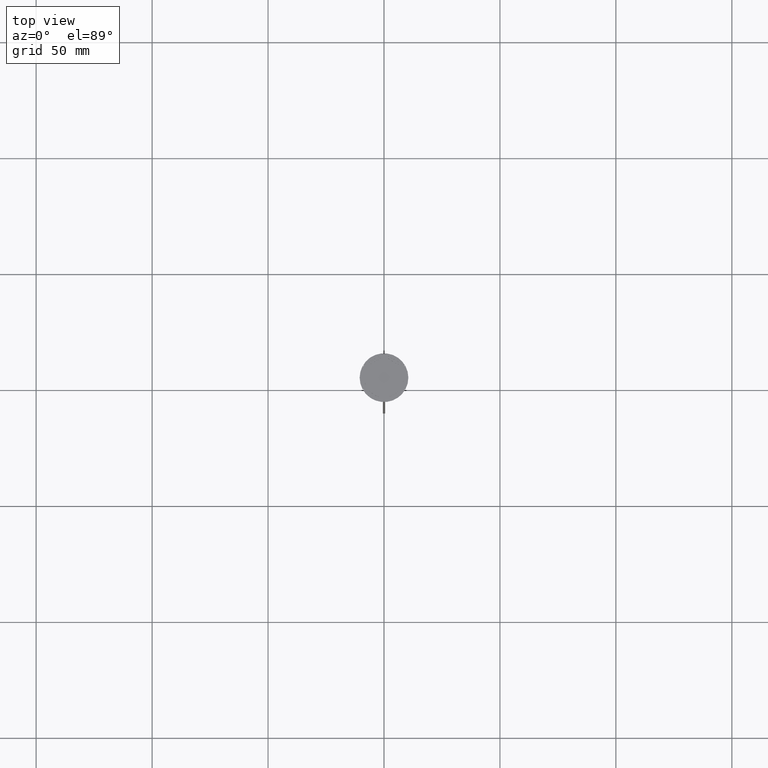
[diagram: clean part render]
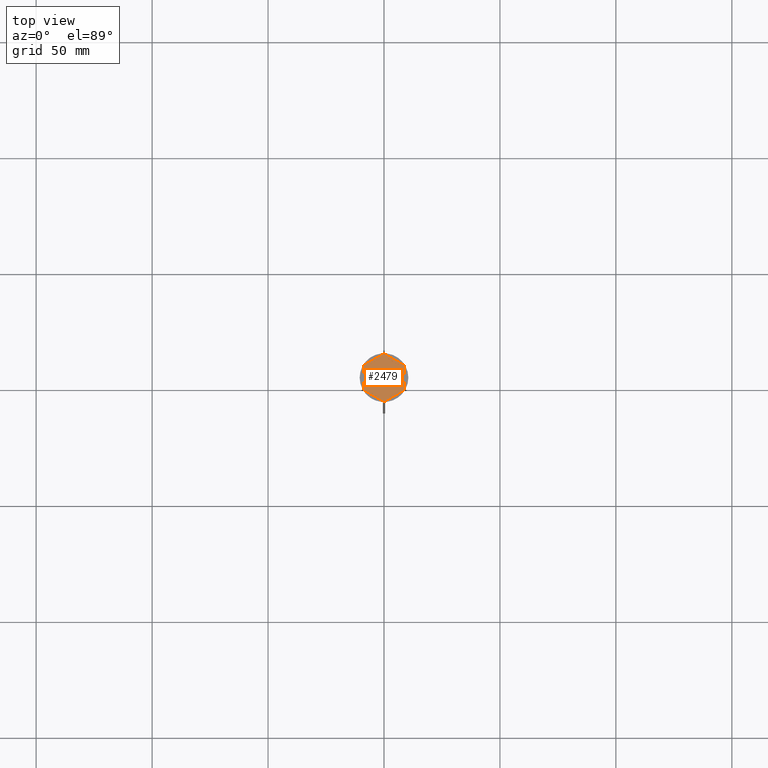
[diagram: same view with one face highlighted and labeled with its STEP entity id]
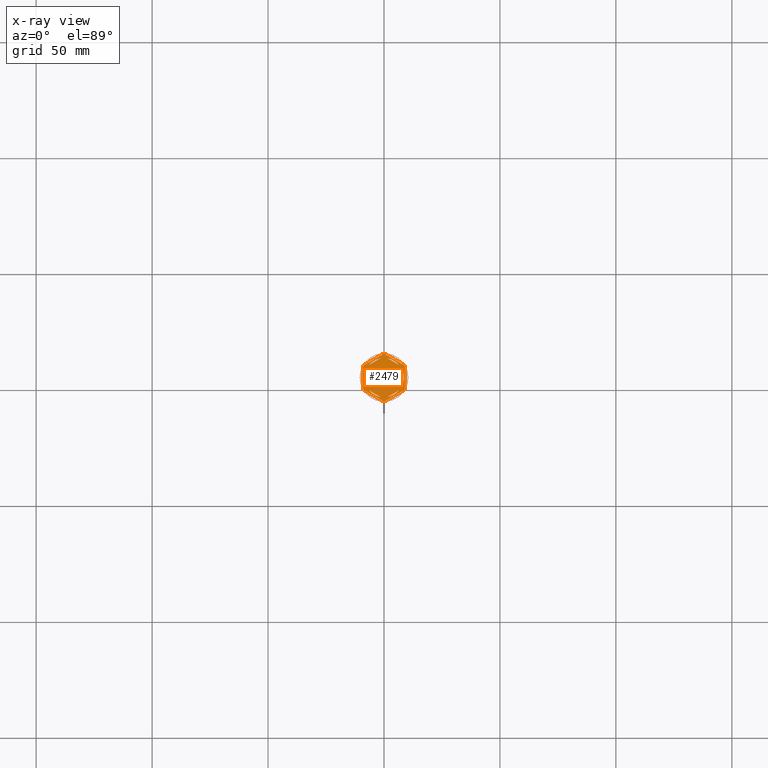
[diagram: x-ray of the same camera — body ghosted, the highlighted face saturated]
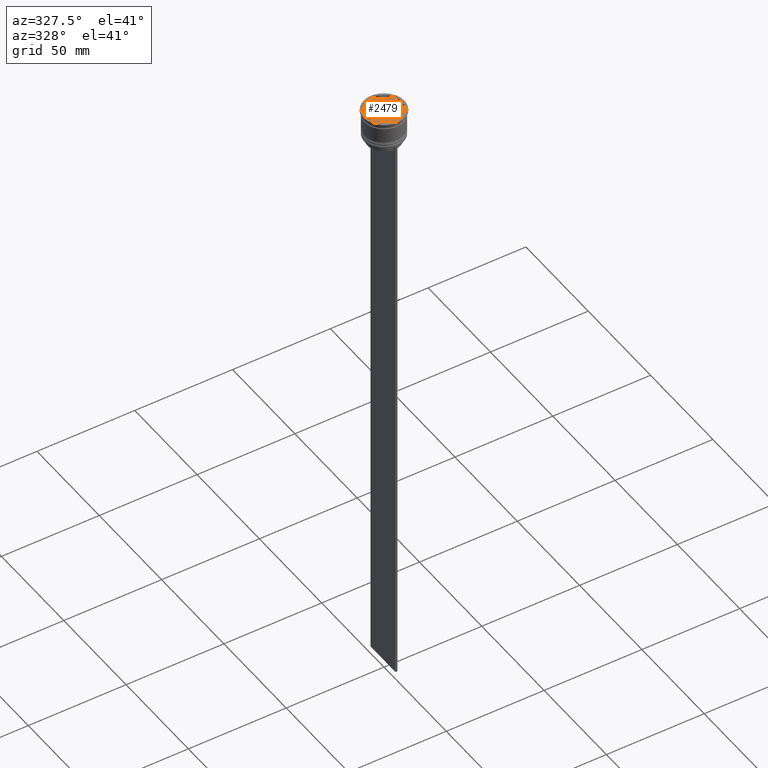
[diagram: same view with one face highlighted and labeled with its STEP entity id]
A machine part, top view. The second image highlights one B-rep face of the part: STEP entity #2479.
The next image is the same camera in x-ray: the body ghosted, the highlighted face saturated — about 0% of this face is hidden behind the body in this view.
A second angle (auxiliary view) of the same face is appended — the face is thin or edge-on in the first view.
In plain terms, the highlighted planar face has unit normal (0, 0, 1).
Its self-contained STEP definition (entity closure, byte-faithful):
#5 = DIRECTION ( 'NONE',  ( 0.000000000000000000, 0.000000000000000000, 1.000000000000000000 ) ) ;
#19 = CIRCLE ( 'NONE', #2150, 8.500000000000000000 ) ;
#26 = EDGE_CURVE ( 'NONE', #2448, #695, #839, .T. ) ;
#45 = DIRECTION ( 'NONE',  ( 0.8660254037844385966, 0.5000000000000001110, 0.000000000000000000 ) ) ;
#57 = LINE ( 'NONE', #96, #2319 ) ;
#58 = AXIS2_PLACEMENT_3D ( 'NONE', #2431, #1789, #2033 ) ;
#68 = VERTEX_POINT ( 'NONE', #1486 ) ;
#69 = CARTESIAN_POINT ( 'NONE',  ( -8.500000000000000000, 0.000000000000000000, -1.000000000000000000 ) ) ;
#72 = VERTEX_POINT ( 'NONE', #69 ) ;
#86 = DIRECTION ( 'NONE',  ( 1.000000000000000000, 0.000000000000000000, 0.000000000000000000 ) ) ;
#87 = CARTESIAN_POINT ( 'NONE',  ( 8.656921938165297092, 5.394228634059953897, -1.000000000000000000 ) ) ;
#96 = CARTESIAN_POINT ( 'NONE',  ( 2.607697573705103160E-15, -10.39230484541326405, -1.000000000000000000 ) ) ;
#141 = EDGE_LOOP ( 'NONE', ( #2612, #1239 ) ) ;
#142 = LINE ( 'NONE', #749, #1396 ) ;
#173 = DIRECTION ( 'NONE',  ( 1.000000000000000000, 1.598721155460225418E-14, 0.000000000000000000 ) ) ;
#175 = ORIENTED_EDGE ( 'NONE', *, *, #712, .F. ) ;
#180 = VERTEX_POINT ( 'NONE', #2178 ) ;
#187 = LINE ( 'NONE', #2301, #2365 ) ;
#202 = CARTESIAN_POINT ( 'NONE',  ( 9.000000000000001776, 4.799999999999988276, -1.000000000000000000 ) ) ;
#211 = VERTEX_POINT ( 'NONE', #1104 ) ;
#217 = FACE_BOUND ( 'NONE', #1979, .T. ) ;
#220 = DIRECTION ( 'NONE',  ( 0.000000000000000000, -1.000000000000000000, 0.000000000000000000 ) ) ;
#227 = AXIS2_PLACEMENT_3D ( 'NONE', #575, #1649, #2083 ) ;
#243 = DIRECTION ( 'NONE',  ( 1.000000000000000000, 0.000000000000000000, 0.000000000000000000 ) ) ;
#247 = EDGE_CURVE ( 'NONE', #748, #1153, #2279, .T. ) ;
#262 = EDGE_CURVE ( 'NONE', #211, #1487, #1671, .T. ) ;
#265 = AXIS2_PLACEMENT_3D ( 'NONE', #2206, #904, #693 ) ;
#267 = VECTOR ( 'NONE', #848, 1000.000000000000000 ) ;
#279 = VECTOR ( 'NONE', #554, 1000.000000000000000 ) ;
#293 = CARTESIAN_POINT ( 'NONE',  ( 0.000000000000000000, 0.000000000000000000, -1.000000000000000000 ) ) ;
#296 = VERTEX_POINT ( 'NONE', #451 ) ;
#302 = CARTESIAN_POINT ( 'NONE',  ( 0.000000000000000000, 10.39230484541326582, -1.000000000000000000 ) ) ;
#306 = DIRECTION ( 'NONE',  ( -0.000000000000000000, -0.000000000000000000, -1.000000000000000000 ) ) ;
#334 = ORIENTED_EDGE ( 'NONE', *, *, #471, .T. ) ;
#338 = LINE ( 'NONE', #1202, #2532 ) ;
#355 = VERTEX_POINT ( 'NONE', #1345 ) ;
#358 = CIRCLE ( 'NONE', #227, 8.500000000000000000 ) ;
#381 = VERTEX_POINT ( 'NONE', #922 ) ;
#383 = DIRECTION ( 'NONE',  ( -0.000000000000000000, -0.000000000000000000, -1.000000000000000000 ) ) ;
#389 = VECTOR ( 'NONE', #1821, 1000.000000000000114 ) ;
#424 = EDGE_CURVE ( 'NONE', #68, #72, #358, .T. ) ;
#442 = AXIS2_PLACEMENT_3D ( 'NONE', #2185, #306, #173 ) ;
#451 = CARTESIAN_POINT ( 'NONE',  ( 8.656921938165297092, -5.394228634059953009, -1.000000000000000000 ) ) ;
#471 = EDGE_CURVE ( 'NONE', #907, #355, #1076, .T. ) ;
#479 = CARTESIAN_POINT ( 'NONE',  ( -1.512531407233448366, -8.364343891910017703, -1.000000000000000888 ) ) ;
#485 = LINE ( 'NONE', #2151, #2273 ) ;
#500 = EDGE_CURVE ( 'NONE', #381, #355, #835, .T. ) ;
#533 = VERTEX_POINT ( 'NONE', #87 ) ;
#543 = LINE ( 'NONE', #302, #279 ) ;
#550 = CARTESIAN_POINT ( 'NONE',  ( 1.512531407233452363, -8.364343891910017703, -1.000000000000000888 ) ) ;
#554 = DIRECTION ( 'NONE',  ( -0.8660254037844385966, -0.5000000000000001110, 0.000000000000000000 ) ) ;
#555 = EDGE_CURVE ( 'NONE', #1347, #180, #485, .T. ) ;
#563 = AXIS2_PLACEMENT_3D ( 'NONE', #1856, #986, #1403 ) ;
#575 = CARTESIAN_POINT ( 'NONE',  ( 0.000000000000000000, 0.000000000000000000, -1.000000000000000000 ) ) ;
#578 = CARTESIAN_POINT ( 'NONE',  ( 0.000000000000000000, 0.000000000000000000, -1.000000000000000000 ) ) ;
#590 = EDGE_CURVE ( 'NONE', #2455, #827, #1664, .T. ) ;
#603 = DIRECTION ( 'NONE',  ( -0.000000000000000000, -0.000000000000000000, -1.000000000000000000 ) ) ;
#615 = CIRCLE ( 'NONE', #2618, 10.19999999999999574 ) ;
#627 = CARTESIAN_POINT ( 'NONE',  ( -8.000000000000000000, 4.618802153517004072, -1.000000000000000888 ) ) ;
#655 = ORIENTED_EDGE ( 'NONE', *, *, #918, .F. ) ;
#656 = AXIS2_PLACEMENT_3D ( 'NONE', #2174, #1298, #1702 ) ;
#664 = CIRCLE ( 'NONE', #1321, 8.500000000000000000 ) ;
#683 = ORIENTED_EDGE ( 'NONE', *, *, #2105, .T. ) ;
#693 = DIRECTION ( 'NONE',  ( 1.000000000000000000, 0.000000000000000000, 0.000000000000000000 ) ) ;
#695 = VERTEX_POINT ( 'NONE', #550 ) ;
#707 = EDGE_CURVE ( 'NONE', #738, #1402, #142, .T. ) ;
#712 = EDGE_CURVE ( 'NONE', #827, #2455, #2613, .T. ) ;
#723 = CARTESIAN_POINT ( 'NONE',  ( -9.000000000000001776, -4.799999999999988276, -1.000000000000000000 ) ) ;
#735 = EDGE_LOOP ( 'NONE', ( #1430, #175 ) ) ;
#737 = EDGE_CURVE ( 'NONE', #72, #772, #1751, .T. ) ;
#738 = VERTEX_POINT ( 'NONE', #1419 ) ;
#746 = CIRCLE ( 'NONE', #2069, 10.19999999999999574 ) ;
#748 = VERTEX_POINT ( 'NONE', #1161 ) ;
#749 = CARTESIAN_POINT ( 'NONE',  ( 9.000000000000001776, -5.196152422706632024, -1.000000000000000000 ) ) ;
#760 = CARTESIAN_POINT ( 'NONE',  ( -8.000000000000000000, -2.872281323269016085, -1.000000000000000888 ) ) ;
#770 = ORIENTED_EDGE ( 'NONE', *, *, #737, .F. ) ;
#772 = VERTEX_POINT ( 'NONE', #760 ) ;
#775 = DIRECTION ( 'NONE',  ( 0.000000000000000000, 0.000000000000000000, 1.000000000000000000 ) ) ;
#778 = CARTESIAN_POINT ( 'NONE',  ( 0.000000000000000000, 0.000000000000000000, -1.000000000000000000 ) ) ;
#783 = EDGE_CURVE ( 'NONE', #533, #1153, #338, .T. ) ;
#788 = CIRCLE ( 'NONE', #656, 8.500000000000000000 ) ;
#801 = DIRECTION ( 'NONE',  ( -0.8660254037844385966, 0.5000000000000000000, 0.000000000000000000 ) ) ;
#810 = EDGE_LOOP ( 'NONE', ( #2264, #1167, #770 ) ) ;
#827 = VERTEX_POINT ( 'NONE', #2630 ) ;
#834 = EDGE_CURVE ( 'NONE', #772, #68, #2108, .T. ) ;
#835 = CIRCLE ( 'NONE', #2024, 10.19999999999999574 ) ;
#839 = LINE ( 'NONE', #1914, #1852 ) ;
#848 = DIRECTION ( 'NONE',  ( 0.000000000000000000, 1.000000000000000000, 0.000000000000000000 ) ) ;
#851 = DIRECTION ( 'NONE',  ( 0.000000000000000000, 0.000000000000000000, 1.000000000000000000 ) ) ;
#882 = ORIENTED_EDGE ( 'NONE', *, *, #707, .T. ) ;
#904 = DIRECTION ( 'NONE',  ( 0.000000000000000000, 0.000000000000000000, 1.000000000000000000 ) ) ;
#907 = VERTEX_POINT ( 'NONE', #1060 ) ;
#911 = DIRECTION ( 'NONE',  ( 1.000000000000000000, 0.000000000000000000, 0.000000000000000000 ) ) ;
#918 = EDGE_CURVE ( 'NONE', #992, #1004, #19, .T. ) ;
#922 = CARTESIAN_POINT ( 'NONE',  ( 0.3430780618347059052, -10.19422863405994306, -1.000000000000000000 ) ) ;
#955 = ORIENTED_EDGE ( 'NONE', *, *, #247, .F. ) ;
#986 = DIRECTION ( 'NONE',  ( 0.000000000000000000, 0.000000000000000000, 1.000000000000000000 ) ) ;
#992 = VERTEX_POINT ( 'NONE', #2574 ) ;
#999 = DIRECTION ( 'NONE',  ( 1.000000000000000000, 0.000000000000000000, 0.000000000000000000 ) ) ;
#1004 = VERTEX_POINT ( 'NONE', #479 ) ;
#1020 = CARTESIAN_POINT ( 'NONE',  ( -8.000000000000000000, -4.618802153517006737, -1.000000000000000888 ) ) ;
#1035 = FACE_BOUND ( 'NONE', #141, .T. ) ;
#1045 = CARTESIAN_POINT ( 'NONE',  ( 6.487468592766547637, -5.492062568641006060, -1.000000000000000888 ) ) ;
#1050 = AXIS2_PLACEMENT_3D ( 'NONE', #2160, #775, #911 ) ;
#1054 = CARTESIAN_POINT ( 'NONE',  ( 8.000000000000000000, 4.618802153517006737, -1.000000000000000888 ) ) ;
#1060 = CARTESIAN_POINT ( 'NONE',  ( -8.656921938165295316, -5.394228634059957450, -1.000000000000000000 ) ) ;
#1076 = LINE ( 'NONE', #1651, #389 ) ;
#1104 = CARTESIAN_POINT ( 'NONE',  ( 6.487468592766552078, 5.492062568641001619, -1.000000000000000888 ) ) ;
#1132 = ORIENTED_EDGE ( 'NONE', *, *, #1500, .T. ) ;
#1153 = VERTEX_POINT ( 'NONE', #1579 ) ;
#1161 = CARTESIAN_POINT ( 'NONE',  ( -0.3430780618347059052, 10.19422863405994306, -1.000000000000000000 ) ) ;
#1167 = ORIENTED_EDGE ( 'NONE', *, *, #834, .F. ) ;
#1183 = VECTOR ( 'NONE', #1238, 1000.000000000000114 ) ;
#1202 = CARTESIAN_POINT ( 'NONE',  ( 9.000000000000001776, 5.196152422706632912, -1.000000000000000000 ) ) ;
#1214 = EDGE_CURVE ( 'NONE', #738, #296, #2399, .T. ) ;
#1221 = DIRECTION ( 'NONE',  ( 1.000000000000000000, 0.000000000000000000, 0.000000000000000000 ) ) ;
#1238 = DIRECTION ( 'NONE',  ( -0.8660254037844385966, 0.4999999999999999445, 0.000000000000000000 ) ) ;
#1239 = ORIENTED_EDGE ( 'NONE', *, *, #1395, .F. ) ;
#1249 = DIRECTION ( 'NONE',  ( 1.000000000000000000, 0.000000000000000000, 0.000000000000000000 ) ) ;
#1260 = CARTESIAN_POINT ( 'NONE',  ( 0.000000000000000000, 0.000000000000000000, -1.000000000000000000 ) ) ;
#1263 = VECTOR ( 'NONE', #1906, 1000.000000000000114 ) ;
#1298 = DIRECTION ( 'NONE',  ( 0.000000000000000000, 0.000000000000000000, 1.000000000000000000 ) ) ;
#1299 = ORIENTED_EDGE ( 'NONE', *, *, #500, .F. ) ;
#1308 = VECTOR ( 'NONE', #2425, 1000.000000000000000 ) ;
#1321 = AXIS2_PLACEMENT_3D ( 'NONE', #778, #5, #999 ) ;
#1327 = ORIENTED_EDGE ( 'NONE', *, *, #1214, .F. ) ;
#1339 = ORIENTED_EDGE ( 'NONE', *, *, #1548, .F. ) ;
#1342 = EDGE_CURVE ( 'NONE', #533, #1402, #746, .T. ) ;
#1345 = CARTESIAN_POINT ( 'NONE',  ( -0.3430780618347024080, -10.19422863405994306, -1.000000000000000000 ) ) ;
#1347 = VERTEX_POINT ( 'NONE', #2277 ) ;
#1358 = VERTEX_POINT ( 'NONE', #1468 ) ;
#1392 = EDGE_CURVE ( 'NONE', #1004, #992, #1427, .T. ) ;
#1395 = EDGE_CURVE ( 'NONE', #1487, #211, #1868, .T. ) ;
#1396 = VECTOR ( 'NONE', #1431, 1000.000000000000000 ) ;
#1402 = VERTEX_POINT ( 'NONE', #202 ) ;
#1403 = DIRECTION ( 'NONE',  ( 1.000000000000000000, 0.000000000000000000, 0.000000000000000000 ) ) ;
#1419 = CARTESIAN_POINT ( 'NONE',  ( 9.000000000000001776, -4.799999999999988276, -1.000000000000000000 ) ) ;
#1427 = LINE ( 'NONE', #1020, #1183 ) ;
#1430 = ORIENTED_EDGE ( 'NONE', *, *, #590, .F. ) ;
#1431 = DIRECTION ( 'NONE',  ( 0.000000000000000000, 1.000000000000000000, 0.000000000000000000 ) ) ;
#1438 = CARTESIAN_POINT ( 'NONE',  ( 0.000000000000000000, 0.000000000000000000, -1.000000000000000000 ) ) ;
#1451 = AXIS2_PLACEMENT_3D ( 'NONE', #1474, #383, #1221 ) ;
#1468 = CARTESIAN_POINT ( 'NONE',  ( -8.656921938165297092, 5.394228634059953009, -1.000000000000000000 ) ) ;
#1470 = DIRECTION ( 'NONE',  ( 0.000000000000000000, 0.000000000000000000, 1.000000000000000000 ) ) ;
#1474 = CARTESIAN_POINT ( 'NONE',  ( 0.000000000000000000, 0.000000000000000000, -1.000000000000000000 ) ) ;
#1486 = CARTESIAN_POINT ( 'NONE',  ( -8.000000000000000000, 2.872281323269016085, -1.000000000000000888 ) ) ;
#1487 = VERTEX_POINT ( 'NONE', #1975 ) ;
#1500 = EDGE_CURVE ( 'NONE', #381, #296, #57, .T. ) ;
#1502 = CARTESIAN_POINT ( 'NONE',  ( 8.000000000000000000, -2.872281323269017417, -1.000000000000000888 ) ) ;
#1512 = EDGE_CURVE ( 'NONE', #2094, #1358, #615, .T. ) ;
#1548 = EDGE_CURVE ( 'NONE', #180, #1347, #788, .T. ) ;
#1579 = CARTESIAN_POINT ( 'NONE',  ( 0.3430780618347050170, 10.19422863405994306, -1.000000000000000000 ) ) ;
#1591 = CARTESIAN_POINT ( 'NONE',  ( -9.000000000000001776, 4.799999999999988276, -1.000000000000000000 ) ) ;
#1643 = ORIENTED_EDGE ( 'NONE', *, *, #1826, .F. ) ;
#1645 = ORIENTED_EDGE ( 'NONE', *, *, #1512, .F. ) ;
#1649 = DIRECTION ( 'NONE',  ( 0.000000000000000000, 0.000000000000000000, 1.000000000000000000 ) ) ;
#1651 = CARTESIAN_POINT ( 'NONE',  ( -9.000000000000001776, -5.196152422706632912, -1.000000000000000000 ) ) ;
#1664 = CIRCLE ( 'NONE', #265, 8.500000000000000000 ) ;
#1671 = CIRCLE ( 'NONE', #1050, 8.500000000000000000 ) ;
#1673 = PLANE ( 'NONE',  #2626 ) ;
#1676 = DIRECTION ( 'NONE',  ( -0.8660254037844387076, -0.4999999999999998335, 0.000000000000000000 ) ) ;
#1686 = FACE_BOUND ( 'NONE', #2119, .T. ) ;
#1702 = DIRECTION ( 'NONE',  ( 1.000000000000000000, 0.000000000000000000, 0.000000000000000000 ) ) ;
#1730 = ORIENTED_EDGE ( 'NONE', *, *, #1342, .F. ) ;
#1751 = CIRCLE ( 'NONE', #563, 8.500000000000000000 ) ;
#1752 = ORIENTED_EDGE ( 'NONE', *, *, #783, .T. ) ;
#1785 = EDGE_CURVE ( 'NONE', #2094, #2143, #187, .T. ) ;
#1789 = DIRECTION ( 'NONE',  ( -0.000000000000000000, -0.000000000000000000, -1.000000000000000000 ) ) ;
#1821 = DIRECTION ( 'NONE',  ( 0.8660254037844387076, -0.4999999999999997224, 0.000000000000000000 ) ) ;
#1826 = EDGE_CURVE ( 'NONE', #907, #2143, #2114, .T. ) ;
#1852 = VECTOR ( 'NONE', #1676, 1000.000000000000114 ) ;
#1856 = CARTESIAN_POINT ( 'NONE',  ( 0.000000000000000000, 0.000000000000000000, -1.000000000000000000 ) ) ;
#1868 = LINE ( 'NONE', #1054, #1263 ) ;
#1898 = FACE_BOUND ( 'NONE', #810, .T. ) ;
#1906 = DIRECTION ( 'NONE',  ( 0.8660254037844385966, -0.4999999999999999445, 0.000000000000000000 ) ) ;
#1907 = ORIENTED_EDGE ( 'NONE', *, *, #2190, .F. ) ;
#1914 = CARTESIAN_POINT ( 'NONE',  ( -8.673617379884035472E-16, -9.237604307034013473, -1.000000000000000888 ) ) ;
#1975 = CARTESIAN_POINT ( 'NONE',  ( 1.512531407233448366, 8.364343891910017703, -1.000000000000000888 ) ) ;
#1979 = EDGE_LOOP ( 'NONE', ( #1907, #2670 ) ) ;
#1988 = EDGE_LOOP ( 'NONE', ( #1339, #2384 ) ) ;
#2024 = AXIS2_PLACEMENT_3D ( 'NONE', #578, #603, #2256 ) ;
#2033 = DIRECTION ( 'NONE',  ( 1.000000000000000000, 8.881784197001252323E-16, 0.000000000000000000 ) ) ;
#2069 = AXIS2_PLACEMENT_3D ( 'NONE', #1438, #2120, #243 ) ;
#2083 = DIRECTION ( 'NONE',  ( 1.000000000000000000, 0.000000000000000000, 0.000000000000000000 ) ) ;
#2094 = VERTEX_POINT ( 'NONE', #1591 ) ;
#2105 = EDGE_CURVE ( 'NONE', #748, #1358, #543, .T. ) ;
#2108 = LINE ( 'NONE', #627, #267 ) ;
#2112 = DIRECTION ( 'NONE',  ( 1.000000000000000000, 0.000000000000000000, -0.000000000000000000 ) ) ;
#2114 = CIRCLE ( 'NONE', #1451, 10.19999999999999574 ) ;
#2119 = EDGE_LOOP ( 'NONE', ( #655, #2172 ) ) ;
#2120 = DIRECTION ( 'NONE',  ( -0.000000000000000000, -0.000000000000000000, -1.000000000000000000 ) ) ;
#2135 = FACE_BOUND ( 'NONE', #735, .T. ) ;
#2143 = VERTEX_POINT ( 'NONE', #723 ) ;
#2150 = AXIS2_PLACEMENT_3D ( 'NONE', #2295, #1470, #1249 ) ;
#2151 = CARTESIAN_POINT ( 'NONE',  ( 8.673617379884035472E-16, 9.237604307034013473, -1.000000000000000888 ) ) ;
#2160 = CARTESIAN_POINT ( 'NONE',  ( 0.000000000000000000, 0.000000000000000000, -1.000000000000000000 ) ) ;
#2172 = ORIENTED_EDGE ( 'NONE', *, *, #1392, .F. ) ;
#2174 = CARTESIAN_POINT ( 'NONE',  ( 0.000000000000000000, 0.000000000000000000, -1.000000000000000000 ) ) ;
#2178 = CARTESIAN_POINT ( 'NONE',  ( -1.512531407233451475, 8.364343891910017703, -1.000000000000000888 ) ) ;
#2184 = DIRECTION ( 'NONE',  ( -0.000000000000000000, -0.000000000000000000, -1.000000000000000000 ) ) ;
#2185 = CARTESIAN_POINT ( 'NONE',  ( 0.000000000000000000, 0.000000000000000000, -1.000000000000000000 ) ) ;
#2190 = EDGE_CURVE ( 'NONE', #695, #2448, #664, .T. ) ;
#2206 = CARTESIAN_POINT ( 'NONE',  ( 0.000000000000000000, 0.000000000000000000, -1.000000000000000000 ) ) ;
#2256 = DIRECTION ( 'NONE',  ( 1.000000000000000000, 0.000000000000000000, 0.000000000000000000 ) ) ;
#2258 = EDGE_LOOP ( 'NONE', ( #882, #1730, #1752, #955, #683, #1645, #2316, #1643, #334, #1299, #1132, #1327 ) ) ;
#2264 = ORIENTED_EDGE ( 'NONE', *, *, #424, .F. ) ;
#2273 = VECTOR ( 'NONE', #2603, 1000.000000000000114 ) ;
#2277 = CARTESIAN_POINT ( 'NONE',  ( -6.487468592766553854, 5.492062568640999842, -1.000000000000000888 ) ) ;
#2279 = CIRCLE ( 'NONE', #442, 10.19999999999999574 ) ;
#2285 = FACE_OUTER_BOUND ( 'NONE', #2258, .T. ) ;
#2295 = CARTESIAN_POINT ( 'NONE',  ( 0.000000000000000000, 0.000000000000000000, -1.000000000000000000 ) ) ;
#2301 = CARTESIAN_POINT ( 'NONE',  ( -9.000000000000001776, 5.196152422706632024, -1.000000000000000000 ) ) ;
#2316 = ORIENTED_EDGE ( 'NONE', *, *, #1785, .T. ) ;
#2319 = VECTOR ( 'NONE', #45, 1000.000000000000000 ) ;
#2322 = FACE_BOUND ( 'NONE', #1988, .T. ) ;
#2365 = VECTOR ( 'NONE', #220, 1000.000000000000000 ) ;
#2384 = ORIENTED_EDGE ( 'NONE', *, *, #555, .F. ) ;
#2399 = CIRCLE ( 'NONE', #58, 10.19999999999999574 ) ;
#2425 = DIRECTION ( 'NONE',  ( -1.877893248421449036E-16, -1.000000000000000000, 0.000000000000000000 ) ) ;
#2431 = CARTESIAN_POINT ( 'NONE',  ( 0.000000000000000000, 0.000000000000000000, -1.000000000000000000 ) ) ;
#2448 = VERTEX_POINT ( 'NONE', #1045 ) ;
#2455 = VERTEX_POINT ( 'NONE', #1502 ) ;
#2464 = CARTESIAN_POINT ( 'NONE',  ( 7.999999999999998224, -4.618802153517008513, -1.000000000000000888 ) ) ;
#2479 = ADVANCED_FACE ( 'NONE', ( #1035, #2135, #217, #1686, #1898, #2322, #2285 ), #1673, .T. ) ;
#2532 = VECTOR ( 'NONE', #801, 1000.000000000000227 ) ;
#2574 = CARTESIAN_POINT ( 'NONE',  ( -6.487468592766552078, -5.492062568641001619, -1.000000000000000888 ) ) ;
#2603 = DIRECTION ( 'NONE',  ( 0.8660254037844384856, 0.5000000000000003331, -0.000000000000000000 ) ) ;
#2612 = ORIENTED_EDGE ( 'NONE', *, *, #262, .F. ) ;
#2613 = LINE ( 'NONE', #2464, #1308 ) ;
#2618 = AXIS2_PLACEMENT_3D ( 'NONE', #293, #2184, #86 ) ;
#2626 = AXIS2_PLACEMENT_3D ( 'NONE', #1260, #851, #2112 ) ;
#2630 = CARTESIAN_POINT ( 'NONE',  ( 8.000000000000000000, 2.872281323269014752, -1.000000000000000888 ) ) ;
#2670 = ORIENTED_EDGE ( 'NONE', *, *, #26, .F. ) ;